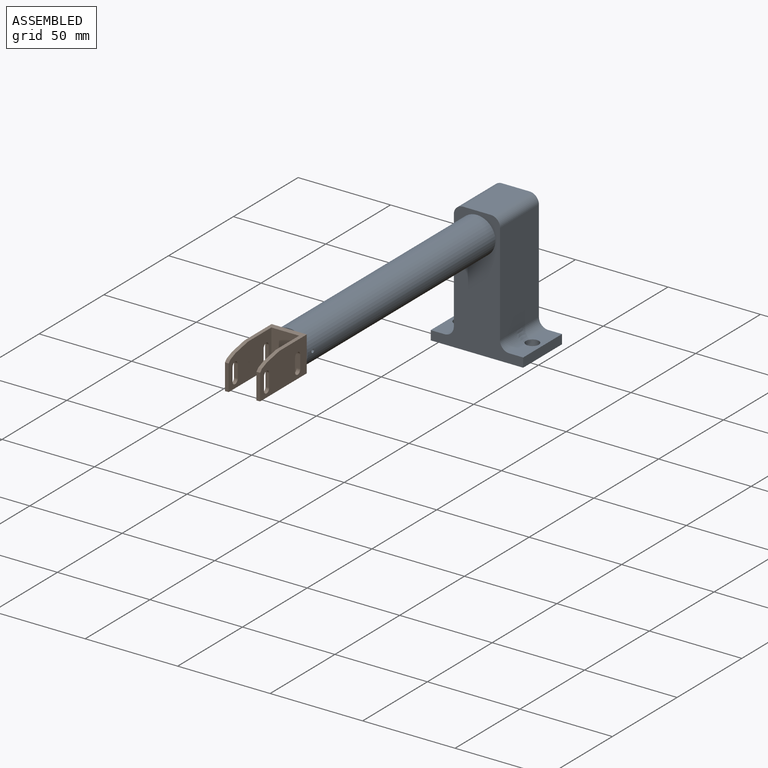
[diagram: assembled view]
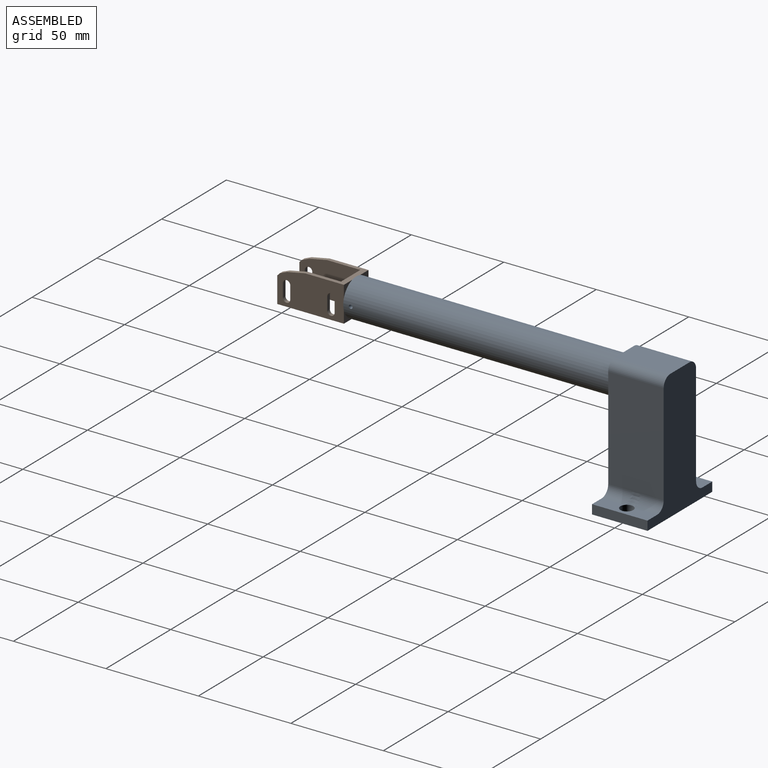
[diagram: assembled view, second angle]
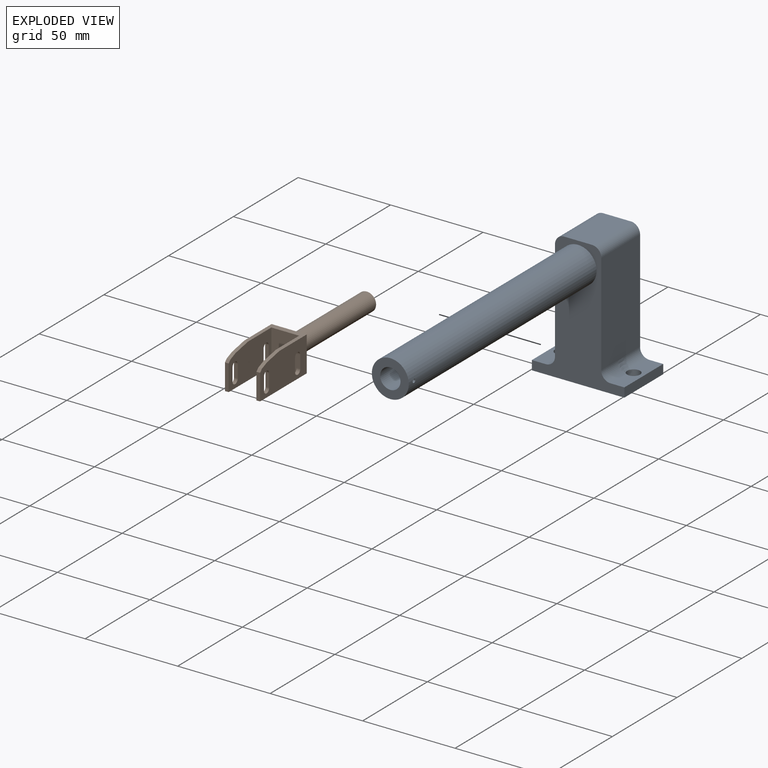
[diagram: exploded view]
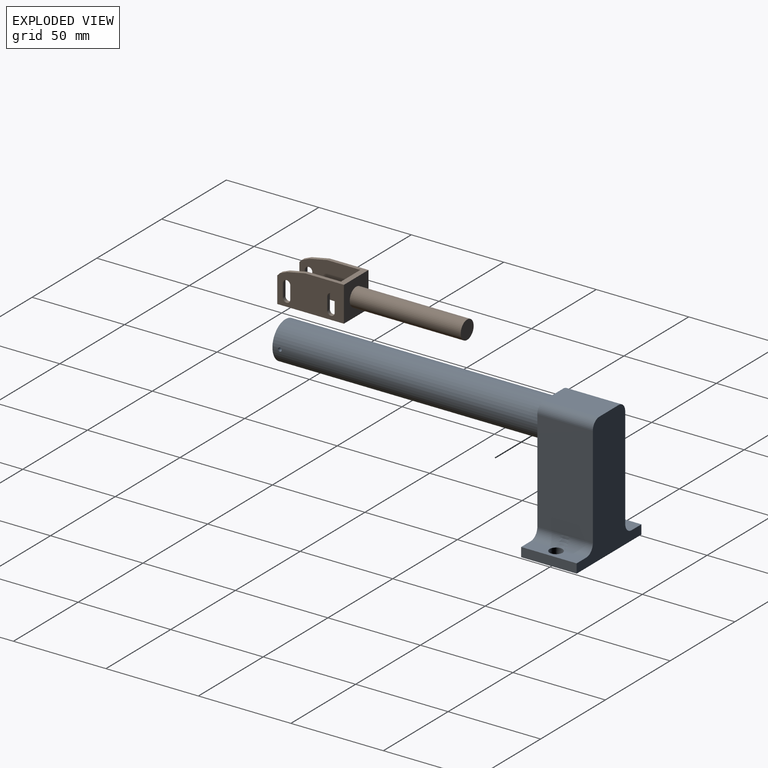
[diagram: exploded view, second angle]
ASSEMBLY  parts=2 mates=2
PART A: 25 faces, bbox 50x175x70 mm
  f0: plane 30x7.5mm, normal (0,0,1), area 192.6mm2, adj f1,f3,f4,f10,f20,f22
  f1: plane 70x50mm, normal (0,1,0), area 1875mm2, adj f0,f2,f4,f5,f6,f7,f8,f9
  f2: plane 30x5mm, normal (-1,0,0), area 150mm2, adj f1,f3,f5,f6
  f3: plane 70x50mm, normal (0,-1,0), area 1560.8mm2, adj f0,f2,f4,f5,f6,f7,f8,f9
  f4: plane 30x5mm, normal (1,0,0), area 150mm2, adj f0,f1,f3,f6
  f5: plane 30x7.5mm, normal (0,0,1), area 192.6mm2, adj f1,f2,f3,f11,f17,f19
  f6: plane 50x30mm, normal (0,0,-1), area 1423mm2, adj f1,f2,f3,f4,f10,f11
  f7: plane 55.23x30mm, normal (-1,0,0), area 1650.6mm2, adj f1,f3,f17,f18,f19,f23
  f8: plane 55.23x30mm, normal (1,0,0), area 1650.6mm2, adj f1,f3,f20,f21,f22,f24
  f9: plane 30x15mm, normal (0,0,1), area 450mm2, adj f1,f3,f23,f24
  f10: cylinder r=3.5mm len=7mm, axis (0,0,1), area 110mm2, adj f0,f6,f21
  f11: cylinder r=3.5mm len=7mm, axis (0,0,1), area 110mm2, adj f5,f6,f18
  f12: cylinder r=5.5mm len=145mm, axis (0,1,0), area 5007.7mm2, adj f14,f15,f16
  f13: cylinder r=10mm len=145mm, axis (0,1,0), area 9107.5mm2, adj f3,f14,f16
  f14: plane 20x20mm, normal (0,-1,0), area 219.1mm2, adj f12,f13
  f15: plane 11x11mm, normal (0,-1,0), area 95mm2, adj f12
  f16: cylinder r=1mm len=4.54mm, axis (1,0,0), area 28.5mm2, adj f12,f13
  f17: cylinder r=5mm len=12.13mm, axis (0,-1,0), area 95.3mm2, adj f3,f5,f7,f18
  f18: bspline ~6.6x5.23mm, area 39.2mm2, adj f7,f11,f17,f19
  f19: cylinder r=5mm len=12.13mm, axis (0,-1,0), area 95.3mm2, adj f1,f5,f7,f18
  f20: cylinder r=5mm len=12.13mm, axis (0,1,0), area 95.3mm2, adj f0,f3,f8,f21
  f21: bspline ~6.6x5.22mm, area 39.2mm2, adj f8,f10,f20,f22
  f22: cylinder r=5mm len=12.13mm, axis (0,1,0), area 95.3mm2, adj f0,f1,f8,f21
  f23: cylinder r=5mm len=30mm, axis (0,1,0), area 235.6mm2, adj f1,f3,f7,f9
  f24: cylinder r=5mm len=30mm, axis (0,-1,0), area 235.6mm2, adj f1,f3,f8,f9
PART B: 34 faces, bbox 19x19x96 mm
  f0: plane 19x15mm, normal (0,0,1), area 285mm2, adj f3,f5,f9,f11
  f1: cylinder r=5mm len=60mm, axis (0,0,-1), area 1885mm2, adj f2,f7
  f2: plane 10x10mm, normal (0,0,-1), area 78.5mm2, adj f1
  f3: plane 21x19mm, normal (0,1,0), area 129mm2, adj f0,f4,f6,f7,f9,f11,f32,f33
  f4: plane 36x19mm, normal (-1,0,0), area 576.7mm2, adj f3,f5,f7,f8,f20,f21,f22,f23
  f5: plane 36x19mm, normal (0,-1,0), area 189mm2, adj f0,f4,f6,f7,f8,f9,f10,f11
  f6: plane 36x19mm, normal (1,0,0), area 576.7mm2, adj f3,f5,f7,f10,f12,f13,f14,f15
  f7: plane 19x19mm, normal (0,0,-1), area 282.5mm2, adj f1,f3,f4,f5,f6
  f8: plane 14x2mm, normal (0,0,1), area 28mm2, adj f4,f5,f9,f29
  f9: plane 33x19mm, normal (1,0,0), area 519.7mm2, adj f0,f3,f5,f8,f20,f21,f22,f23
  f10: plane 14x2mm, normal (0,0,1), area 28mm2, adj f5,f6,f11,f28
  f11: plane 33x19mm, normal (-1,0,0), area 519.7mm2, adj f0,f3,f5,f10,f12,f13,f14,f15
  f12: cylinder r=2mm len=4mm, axis (-1,0,0), area 12.6mm2, adj f6,f11,f13,f14
  f13: plane 7x2mm, normal (0,0,1), area 14mm2, adj f6,f11,f12,f15
  f14: plane 7x2mm, normal (0,0,-1), area 14mm2, adj f6,f11,f12,f15
  f15: cylinder r=2mm len=4mm, axis (-1,0,0), area 12.6mm2, adj f6,f11,f13,f14
  f16: cylinder r=2mm len=4mm, axis (-1,0,0), area 12.6mm2, adj f6,f11,f17,f18
  f17: plane 7x2mm, normal (0,0,-1), area 14mm2, adj f6,f11,f16,f19
  f18: plane 7x2mm, normal (0,0,1), area 14mm2, adj f6,f11,f16,f19
  f19: cylinder r=2mm len=4mm, axis (-1,0,0), area 12.6mm2, adj f6,f11,f17,f18
  f20: cylinder r=2mm len=4mm, axis (-1,0,0), area 12.6mm2, adj f4,f9,f21,f22
  f21: plane 7x2mm, normal (0,0,-1), area 14mm2, adj f4,f9,f20,f23
  f22: plane 7x2mm, normal (0,0,1), area 14mm2, adj f4,f9,f20,f23
  f23: cylinder r=2mm len=4mm, axis (-1,0,0), area 12.6mm2, adj f4,f9,f21,f22
  f24: cylinder r=2mm len=4mm, axis (-1,0,0), area 12.6mm2, adj f4,f9,f25,f26
  f25: plane 7x2mm, normal (0,0,1), area 14mm2, adj f4,f9,f24,f27
  f26: plane 7x2mm, normal (0,0,-1), area 14mm2, adj f4,f9,f24,f27
  f27: cylinder r=2mm len=4mm, axis (-1,0,0), area 12.6mm2, adj f4,f9,f25,f26
  f28: plane 2x1.46mm, normal (0,0.71,0.71), area 4.1mm2, adj f6,f10,f11,f31
  f29: plane 2x1.46mm, normal (0,0.71,0.71), area 4.1mm2, adj f4,f8,f9,f30
  f30: plane 3.92x2mm, normal (0,0.92,0.38), area 8.5mm2, adj f4,f9,f29,f32
  f31: plane 3.92x2mm, normal (0,0.92,0.38), area 8.5mm2, adj f6,f11,f28,f33
  f32: plane 9.62x2mm, normal (0,0.98,0.2), area 19.6mm2, adj f3,f4,f9,f30
  f33: plane 9.62x2mm, normal (0,0.98,0.2), area 19.6mm2, adj f3,f6,f11,f31
PLACE A at identity
PLACE B rot(axis=(1,0,0),90deg) t=(282.72,-147.08,-58.07)mm
MATE cylindrical B.f1 <-> A.f12  axis (0,1,0) through (25.2,-147.08,58)mm
MATE planar B.f1 <-> A.f12  axis (0,1,0) through (25.2,-207.08,58)mm
